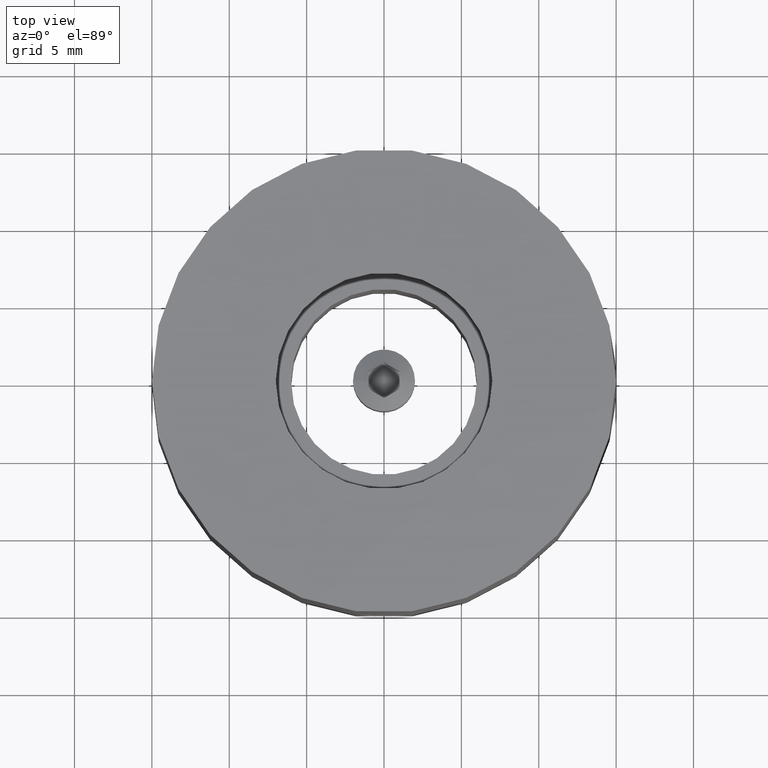
[diagram: clean part render]
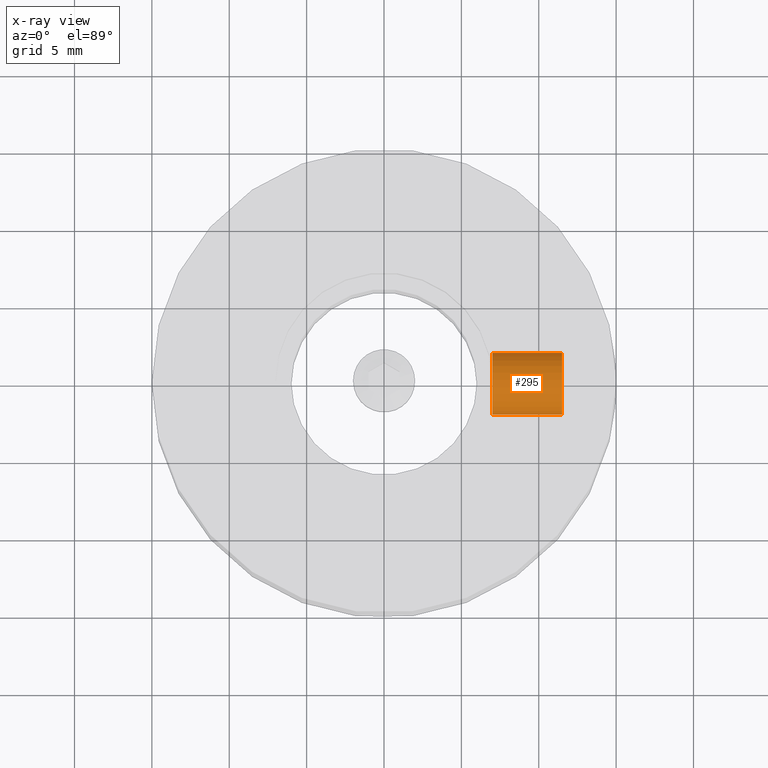
[diagram: x-ray — body ghosted, one internal face saturated and labeled with its STEP entity id]
A machine part, top view, then the same camera in x-ray: the body is ghosted and one INTERNAL B-rep face — a face not visible from any outside direction — is saturated and labeled: STEP entity #295.
In plain terms, the highlighted cylindrical surface (bore or boss wall) has radius 2 mm, axis along (1, -0, 0).
Its self-contained STEP definition (entity closure, byte-faithful):
#295 = ADVANCED_FACE( '', ( #354, #355 ), #356, .T. );
#354 = FACE_OUTER_BOUND( '', #415, .T. );
#355 = FACE_OUTER_BOUND( '', #416, .T. );
#356 = CYLINDRICAL_SURFACE( '', #417, 2.00000000000000 );
#415 = EDGE_LOOP( '', ( #541 ) );
#416 = EDGE_LOOP( '', ( #542 ) );
#417 = AXIS2_PLACEMENT_3D( '', #543, #544, #545 );
#541 = ORIENTED_EDGE( '', *, *, #563, .T. );
#542 = ORIENTED_EDGE( '', *, *, #584, .F. );
#543 = CARTESIAN_POINT( '', ( 0.000000000000000, 0.000000000000000, 0.000000000000000 ) );
#544 = DIRECTION( '', ( 0.000000000000000, -0.000000000000000, 1.00000000000000 ) );
#545 = DIRECTION( '', ( -1.00000000000000, 0.000000000000000, 0.000000000000000 ) );
#563 = EDGE_CURVE( '', #609, #609, #610, .T. );
#584 = EDGE_CURVE( '', #643, #643, #644, .T. );
#609 = VERTEX_POINT( '', #881 );
#610 = CIRCLE( '', #882, 2.00000000000000 );
#643 = VERTEX_POINT( '', #957 );
#644 = CIRCLE( '', #958, 2.00000000000000 );
#881 = CARTESIAN_POINT( '', ( -2.00000000000000, 0.000000000000000, 5.50000000000000 ) );
#882 = AXIS2_PLACEMENT_3D( '', #983, #984, #985 );
#957 = CARTESIAN_POINT( '', ( -2.00000000000000, 0.000000000000000, 1.00000000000000 ) );
#958 = AXIS2_PLACEMENT_3D( '', #1001, #1002, #1003 );
#983 = CARTESIAN_POINT( '', ( 0.000000000000000, 0.000000000000000, 5.50000000000000 ) );
#984 = DIRECTION( '', ( -0.000000000000000, 0.000000000000000, -1.00000000000000 ) );
#985 = DIRECTION( '', ( -1.00000000000000, 0.000000000000000, 0.000000000000000 ) );
#1001 = CARTESIAN_POINT( '', ( 0.000000000000000, 0.000000000000000, 1.00000000000000 ) );
#1002 = DIRECTION( '', ( -0.000000000000000, 0.000000000000000, -1.00000000000000 ) );
#1003 = DIRECTION( '', ( -1.00000000000000, 0.000000000000000, 0.000000000000000 ) );